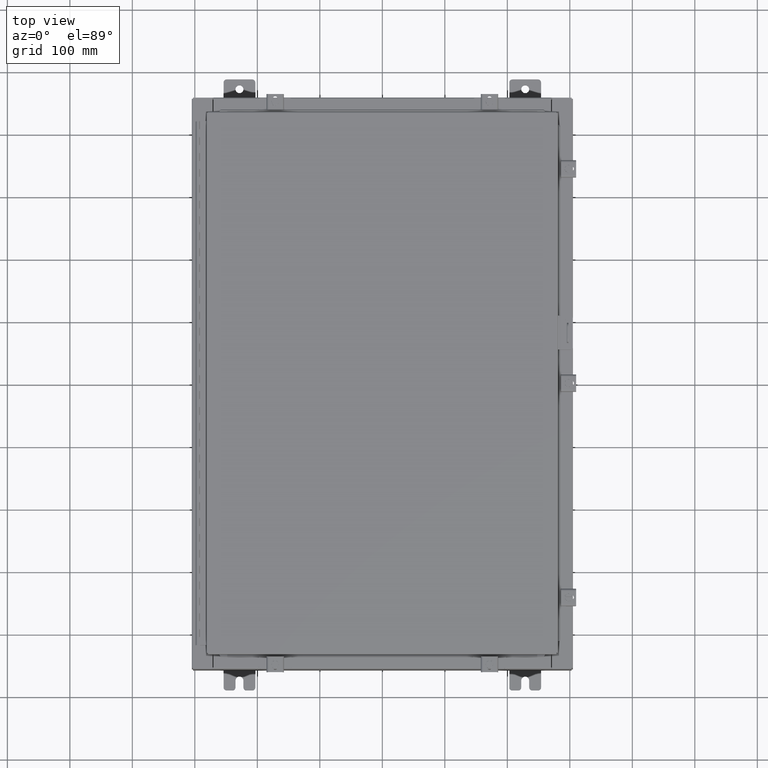
[diagram: clean part render]
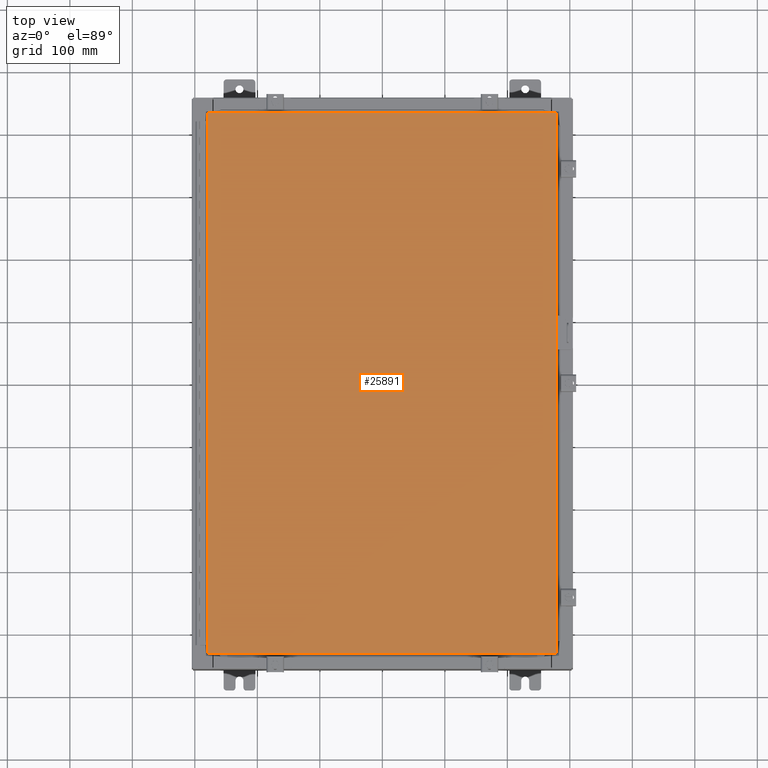
[diagram: same view with one face highlighted and labeled with its STEP entity id]
A machine part, top view. The second image highlights one B-rep face of the part: STEP entity #25891.
In plain terms, the highlighted planar face has unit normal (0, 0, -1).
Its self-contained STEP definition (entity closure, byte-faithful):
#495 = ORIENTED_EDGE ( 'NONE', *, *, #18157, .T. ) ;
#577 = VERTEX_POINT ( 'NONE', #5312 ) ;
#1674 = EDGE_CURVE ( 'NONE', #25754, #12941, #24681, .T. ) ;
#2133 = AXIS2_PLACEMENT_3D ( 'NONE', #39447, #36039, #26350 ) ;
#2605 = CARTESIAN_POINT ( 'NONE',  ( -10.99030000000000000, -17.00629999999999600, 8.878505979408856000E-016 ) ) ;
#3078 = CARTESIAN_POINT ( 'NONE',  ( 10.99029999999999800, 17.00630000000000700, -2.048885995248197400E-016 ) ) ;
#5312 = CARTESIAN_POINT ( 'NONE',  ( -10.99030000000000500, 17.00630000000000700, -3.483106191921935600E-015 ) ) ;
#8433 = CARTESIAN_POINT ( 'NONE',  ( -10.99030000000000000, -17.00629999999999600, 8.878505979408856000E-016 ) ) ;
#9190 = LINE ( 'NONE', #9735, #34392 ) ;
#9735 = CARTESIAN_POINT ( 'NONE',  ( -10.99030000000000500, 17.00630000000000700, -3.483106191921935600E-015 ) ) ;
#10838 = EDGE_CURVE ( 'NONE', #12941, #27141, #11529, .T. ) ;
#11305 = CARTESIAN_POINT ( 'NONE',  ( 10.99029999999999600, -17.00629999999999200, -2.048885995248197400E-016 ) ) ;
#11529 = LINE ( 'NONE', #11305, #29052 ) ;
#12841 = LINE ( 'NONE', #34501, #29324 ) ;
#12941 = VERTEX_POINT ( 'NONE', #21542 ) ;
#15990 = VECTOR ( 'NONE', #34605, 39.37007874015748100 ) ;
#16375 = FACE_OUTER_BOUND ( 'NONE', #18895, .T. ) ;
#18157 = EDGE_CURVE ( 'NONE', #577, #25754, #9190, .T. ) ;
#18895 = EDGE_LOOP ( 'NONE', ( #33928, #33225, #40741, #495 ) ) ;
#21542 = CARTESIAN_POINT ( 'NONE',  ( 10.99029999999999600, -17.00629999999999200, -2.048885995248197400E-016 ) ) ;
#23077 = PLANE ( 'NONE',  #2133 ) ;
#24681 = LINE ( 'NONE', #8433, #15990 ) ;
#25754 = VERTEX_POINT ( 'NONE', #2605 ) ;
#25891 = ADVANCED_FACE ( 'NONE', ( #16375 ), #23077, .F. ) ;
#26350 = DIRECTION ( 'NONE',  ( -1.000000000000000000, 0.0000000000000000000, -0.0000000000000000000 ) ) ;
#27141 = VERTEX_POINT ( 'NONE', #3078 ) ;
#29052 = VECTOR ( 'NONE', #34312, 39.37007874015748100 ) ;
#29324 = VECTOR ( 'NONE', #37813, 39.37007874015748100 ) ;
#32749 = DIRECTION ( 'NONE',  ( 0.0000000000000000000, -1.000000000000000000, 0.0000000000000000000 ) ) ;
#33225 = ORIENTED_EDGE ( 'NONE', *, *, #10838, .T. ) ;
#33928 = ORIENTED_EDGE ( 'NONE', *, *, #1674, .T. ) ;
#34312 = DIRECTION ( 'NONE',  ( 0.0000000000000000000, 1.000000000000000000, 0.0000000000000000000 ) ) ;
#34392 = VECTOR ( 'NONE', #32749, 39.37007874015748100 ) ;
#34501 = CARTESIAN_POINT ( 'NONE',  ( 10.99029999999999800, 17.00630000000000700, -2.048885995248197400E-016 ) ) ;
#34605 = DIRECTION ( 'NONE',  ( 1.000000000000000000, -0.0000000000000000000, -0.0000000000000000000 ) ) ;
#36039 = DIRECTION ( 'NONE',  ( 0.0000000000000000000, 0.0000000000000000000, -1.000000000000000000 ) ) ;
#37813 = DIRECTION ( 'NONE',  ( -1.000000000000000000, -0.0000000000000000000, -0.0000000000000000000 ) ) ;
#39447 = CARTESIAN_POINT ( 'NONE',  ( 0.0000000000000000000, 0.0000000000000000000, 0.0000000000000000000 ) ) ;
#40741 = ORIENTED_EDGE ( 'NONE', *, *, #41348, .T. ) ;
#41348 = EDGE_CURVE ( 'NONE', #27141, #577, #12841, .T. ) ;